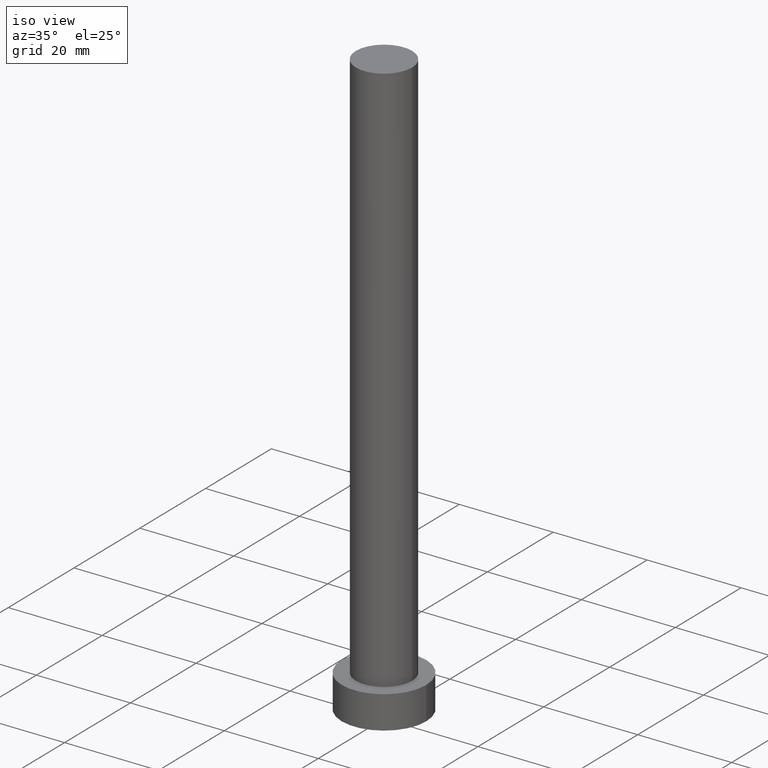
[diagram: clean part render]
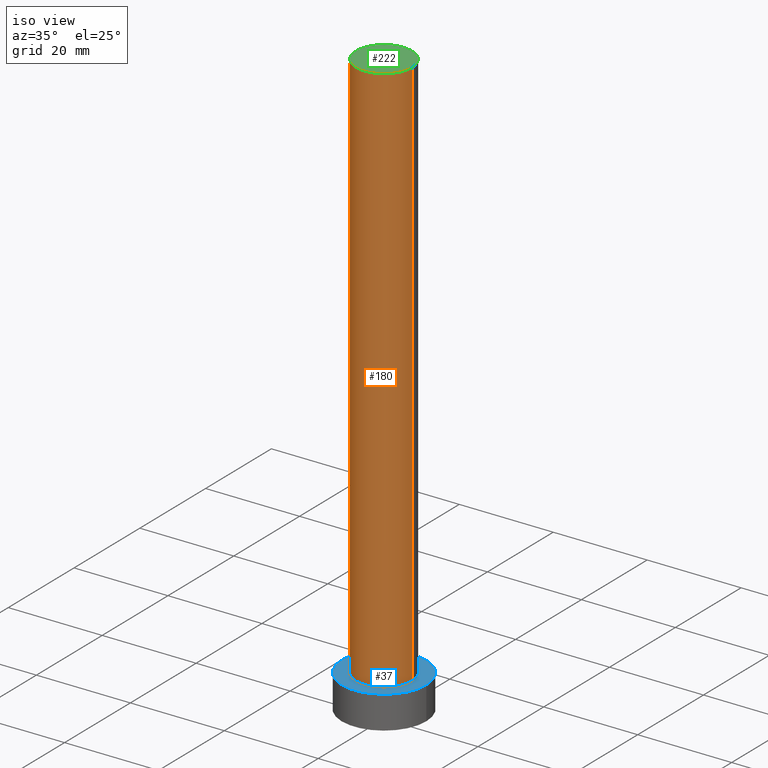
[diagram: same view with three faces highlighted in distinct colors, each labeled with its STEP entity id]
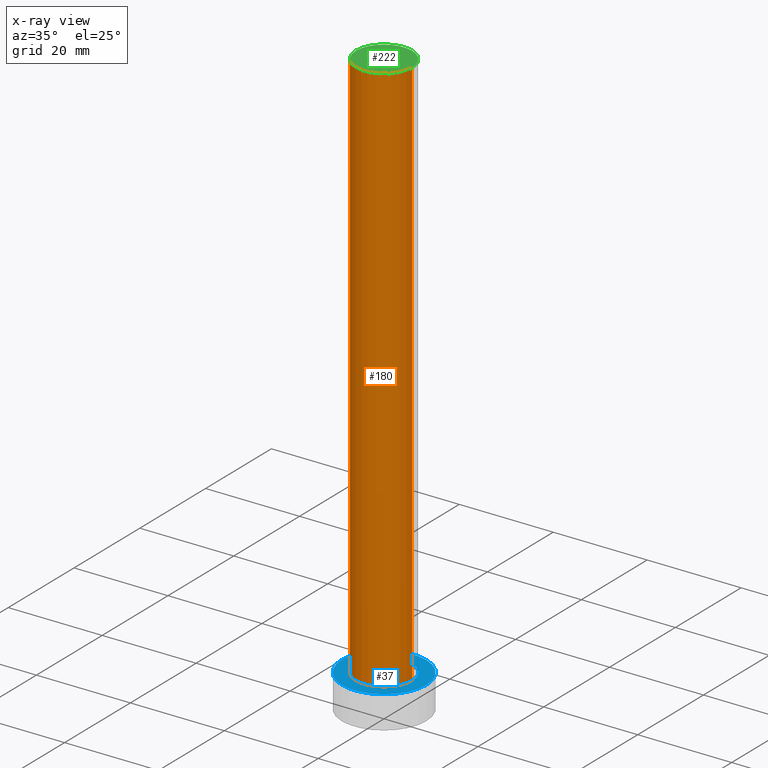
[diagram: x-ray of the same camera — body ghosted, the three highlighted faces saturated]
A machine part, iso view with three faces highlighted in distinct colors.
The next image is the same camera in x-ray (body ghosted, the three faces saturated) — at least one of them is partly hidden behind the body in this view.
Their STEP definitions:

[orange] entity #180 — the highlighted cylindrical surface (edge-blend (fillet) strip) has radius 6 mm, axis along (-0, -0, -1).
#1 = EDGE_CURVE ( 'NONE', #31, #81, #22, .T. ) ;
#7 = VERTEX_POINT ( 'NONE', #188 ) ;
#10 = CYLINDRICAL_SURFACE ( 'NONE', #179, 6.000000000000000888 ) ;
#11 = CARTESIAN_POINT ( 'NONE',  ( 0.000000000000000000, 0.000000000000000000, 125.0000000000000000 ) ) ;
#13 = LINE ( 'NONE', #229, #47 ) ;
#18 = ORIENTED_EDGE ( 'NONE', *, *, #149, .F. ) ;
#21 = CARTESIAN_POINT ( 'NONE',  ( 0.000000000000000000, 0.000000000000000000, 125.0000000000000000 ) ) ;
#22 = LINE ( 'NONE', #241, #146 ) ;
#31 = VERTEX_POINT ( 'NONE', #120 ) ;
#36 = DIRECTION ( 'NONE',  ( 0.000000000000000000, 0.000000000000000000, 1.000000000000000000 ) ) ;
#39 = ORIENTED_EDGE ( 'NONE', *, *, #1, .F. ) ;
#42 = DIRECTION ( 'NONE',  ( -0.000000000000000000, -0.000000000000000000, -1.000000000000000000 ) ) ;
#47 = VECTOR ( 'NONE', #129, 1000.000000000000000 ) ;
#58 = DIRECTION ( 'NONE',  ( 1.000000000000000000, 0.000000000000000000, 0.000000000000000000 ) ) ;
#63 = CIRCLE ( 'NONE', #209, 6.000000000000000888 ) ;
#75 = CARTESIAN_POINT ( 'NONE',  ( -6.000000000000000888, 0.000000000000000000, 7.000000000000000000 ) ) ;
#81 = VERTEX_POINT ( 'NONE', #210 ) ;
#86 = EDGE_CURVE ( 'NONE', #153, #81, #237, .T. ) ;
#100 = EDGE_LOOP ( 'NONE', ( #39, #18, #114, #135 ) ) ;
#114 = ORIENTED_EDGE ( 'NONE', *, *, #172, .T. ) ;
#120 = CARTESIAN_POINT ( 'NONE',  ( 6.000000000000000888, 7.347880794884120722E-16, 125.0000000000000000 ) ) ;
#123 = FACE_OUTER_BOUND ( 'NONE', #100, .T. ) ;
#127 = CARTESIAN_POINT ( 'NONE',  ( 0.000000000000000000, 0.000000000000000000, 7.000000000000000000 ) ) ;
#129 = DIRECTION ( 'NONE',  ( -0.000000000000000000, -0.000000000000000000, -1.000000000000000000 ) ) ;
#133 = DIRECTION ( 'NONE',  ( -1.000000000000000000, 0.000000000000000000, 0.000000000000000000 ) ) ;
#135 = ORIENTED_EDGE ( 'NONE', *, *, #86, .T. ) ;
#146 = VECTOR ( 'NONE', #42, 1000.000000000000000 ) ;
#149 = EDGE_CURVE ( 'NONE', #7, #31, #63, .T. ) ;
#153 = VERTEX_POINT ( 'NONE', #75 ) ;
#154 = AXIS2_PLACEMENT_3D ( 'NONE', #127, #191, #195 ) ;
#172 = EDGE_CURVE ( 'NONE', #7, #153, #13, .T. ) ;
#179 = AXIS2_PLACEMENT_3D ( 'NONE', #21, #202, #133 ) ;
#180 = ADVANCED_FACE ( 'NONE', ( #123 ), #10, .T. ) ;
#188 = CARTESIAN_POINT ( 'NONE',  ( -6.000000000000000888, 0.000000000000000000, 125.0000000000000000 ) ) ;
#191 = DIRECTION ( 'NONE',  ( 0.000000000000000000, 0.000000000000000000, 1.000000000000000000 ) ) ;
#195 = DIRECTION ( 'NONE',  ( 1.000000000000000000, 0.000000000000000000, 0.000000000000000000 ) ) ;
#202 = DIRECTION ( 'NONE',  ( -0.000000000000000000, -0.000000000000000000, -1.000000000000000000 ) ) ;
#209 = AXIS2_PLACEMENT_3D ( 'NONE', #11, #36, #58 ) ;
#210 = CARTESIAN_POINT ( 'NONE',  ( 6.000000000000000888, 7.347880794884120722E-16, 7.000000000000000000 ) ) ;
#229 = CARTESIAN_POINT ( 'NONE',  ( -6.000000000000000888, 0.000000000000000000, 125.0000000000000000 ) ) ;
#237 = CIRCLE ( 'NONE', #154, 6.000000000000000888 ) ;
#241 = CARTESIAN_POINT ( 'NONE',  ( 6.000000000000000888, 7.347880794884120722E-16, 125.0000000000000000 ) ) ;

[blue] entity #37 — the highlighted planar face has unit normal (0, 0, 1).
#9 = CIRCLE ( 'NONE', #166, 9.000000000000000000 ) ;
#15 = FACE_OUTER_BOUND ( 'NONE', #96, .T. ) ;
#16 = DIRECTION ( 'NONE',  ( 0.000000000000000000, 0.000000000000000000, 1.000000000000000000 ) ) ;
#19 = ORIENTED_EDGE ( 'NONE', *, *, #160, .T. ) ;
#20 = EDGE_CURVE ( 'NONE', #178, #77, #9, .T. ) ;
#28 = DIRECTION ( 'NONE',  ( 1.000000000000000000, 0.000000000000000000, 0.000000000000000000 ) ) ;
#30 = DIRECTION ( 'NONE',  ( 1.000000000000000000, 0.000000000000000000, 0.000000000000000000 ) ) ;
#37 = ADVANCED_FACE ( 'NONE', ( #93, #15 ), #168, .T. ) ;
#38 = ORIENTED_EDGE ( 'NONE', *, *, #142, .F. ) ;
#52 = CARTESIAN_POINT ( 'NONE',  ( -9.000000000000000000, 0.000000000000000000, 7.000000000000000000 ) ) ;
#61 = AXIS2_PLACEMENT_3D ( 'NONE', #163, #246, #94 ) ;
#69 = DIRECTION ( 'NONE',  ( 0.000000000000000000, 0.000000000000000000, 1.000000000000000000 ) ) ;
#75 = CARTESIAN_POINT ( 'NONE',  ( -6.000000000000000888, 0.000000000000000000, 7.000000000000000000 ) ) ;
#77 = VERTEX_POINT ( 'NONE', #170 ) ;
#81 = VERTEX_POINT ( 'NONE', #210 ) ;
#86 = EDGE_CURVE ( 'NONE', #153, #81, #237, .T. ) ;
#87 = CARTESIAN_POINT ( 'NONE',  ( 0.000000000000000000, 0.000000000000000000, 7.000000000000000000 ) ) ;
#93 = FACE_BOUND ( 'NONE', #185, .T. ) ;
#94 = DIRECTION ( 'NONE',  ( 1.000000000000000000, 0.000000000000000000, -0.000000000000000000 ) ) ;
#96 = EDGE_LOOP ( 'NONE', ( #102, #19 ) ) ;
#97 = CIRCLE ( 'NONE', #240, 9.000000000000000000 ) ;
#102 = ORIENTED_EDGE ( 'NONE', *, *, #20, .T. ) ;
#117 = DIRECTION ( 'NONE',  ( 0.000000000000000000, 0.000000000000000000, 1.000000000000000000 ) ) ;
#121 = ORIENTED_EDGE ( 'NONE', *, *, #86, .F. ) ;
#127 = CARTESIAN_POINT ( 'NONE',  ( 0.000000000000000000, 0.000000000000000000, 7.000000000000000000 ) ) ;
#139 = DIRECTION ( 'NONE',  ( 1.000000000000000000, 0.000000000000000000, 0.000000000000000000 ) ) ;
#142 = EDGE_CURVE ( 'NONE', #81, #153, #157, .T. ) ;
#148 = CARTESIAN_POINT ( 'NONE',  ( 0.000000000000000000, 0.000000000000000000, 7.000000000000000000 ) ) ;
#153 = VERTEX_POINT ( 'NONE', #75 ) ;
#154 = AXIS2_PLACEMENT_3D ( 'NONE', #127, #191, #195 ) ;
#157 = CIRCLE ( 'NONE', #174, 6.000000000000000888 ) ;
#160 = EDGE_CURVE ( 'NONE', #77, #178, #97, .T. ) ;
#163 = CARTESIAN_POINT ( 'NONE',  ( 0.000000000000000000, 0.000000000000000000, 7.000000000000000000 ) ) ;
#166 = AXIS2_PLACEMENT_3D ( 'NONE', #87, #117, #139 ) ;
#168 = PLANE ( 'NONE',  #61 ) ;
#170 = CARTESIAN_POINT ( 'NONE',  ( 9.000000000000000000, 1.102182119232617714E-15, 7.000000000000000000 ) ) ;
#174 = AXIS2_PLACEMENT_3D ( 'NONE', #214, #16, #30 ) ;
#178 = VERTEX_POINT ( 'NONE', #52 ) ;
#185 = EDGE_LOOP ( 'NONE', ( #121, #38 ) ) ;
#191 = DIRECTION ( 'NONE',  ( 0.000000000000000000, 0.000000000000000000, 1.000000000000000000 ) ) ;
#195 = DIRECTION ( 'NONE',  ( 1.000000000000000000, 0.000000000000000000, 0.000000000000000000 ) ) ;
#210 = CARTESIAN_POINT ( 'NONE',  ( 6.000000000000000888, 7.347880794884120722E-16, 7.000000000000000000 ) ) ;
#214 = CARTESIAN_POINT ( 'NONE',  ( 0.000000000000000000, 0.000000000000000000, 7.000000000000000000 ) ) ;
#237 = CIRCLE ( 'NONE', #154, 6.000000000000000888 ) ;
#240 = AXIS2_PLACEMENT_3D ( 'NONE', #148, #69, #28 ) ;
#246 = DIRECTION ( 'NONE',  ( 0.000000000000000000, 0.000000000000000000, 1.000000000000000000 ) ) ;

[green] entity #222 — the highlighted planar face has unit normal (0, 0, 1).
#3 = PLANE ( 'NONE',  #156 ) ;
#4 = EDGE_LOOP ( 'NONE', ( #79, #113 ) ) ;
#7 = VERTEX_POINT ( 'NONE', #188 ) ;
#11 = CARTESIAN_POINT ( 'NONE',  ( 0.000000000000000000, 0.000000000000000000, 125.0000000000000000 ) ) ;
#31 = VERTEX_POINT ( 'NONE', #120 ) ;
#32 = EDGE_CURVE ( 'NONE', #31, #7, #136, .T. ) ;
#36 = DIRECTION ( 'NONE',  ( 0.000000000000000000, 0.000000000000000000, 1.000000000000000000 ) ) ;
#58 = DIRECTION ( 'NONE',  ( 1.000000000000000000, 0.000000000000000000, 0.000000000000000000 ) ) ;
#63 = CIRCLE ( 'NONE', #209, 6.000000000000000888 ) ;
#67 = CARTESIAN_POINT ( 'NONE',  ( 0.000000000000000000, 0.000000000000000000, 125.0000000000000000 ) ) ;
#79 = ORIENTED_EDGE ( 'NONE', *, *, #149, .T. ) ;
#99 = FACE_OUTER_BOUND ( 'NONE', #4, .T. ) ;
#104 = DIRECTION ( 'NONE',  ( 1.000000000000000000, 0.000000000000000000, -0.000000000000000000 ) ) ;
#113 = ORIENTED_EDGE ( 'NONE', *, *, #32, .T. ) ;
#120 = CARTESIAN_POINT ( 'NONE',  ( 6.000000000000000888, 7.347880794884120722E-16, 125.0000000000000000 ) ) ;
#136 = CIRCLE ( 'NONE', #141, 6.000000000000000888 ) ;
#141 = AXIS2_PLACEMENT_3D ( 'NONE', #67, #227, #164 ) ;
#149 = EDGE_CURVE ( 'NONE', #7, #31, #63, .T. ) ;
#155 = CARTESIAN_POINT ( 'NONE',  ( 0.000000000000000000, 0.000000000000000000, 125.0000000000000000 ) ) ;
#156 = AXIS2_PLACEMENT_3D ( 'NONE', #155, #239, #104 ) ;
#164 = DIRECTION ( 'NONE',  ( 1.000000000000000000, 0.000000000000000000, 0.000000000000000000 ) ) ;
#188 = CARTESIAN_POINT ( 'NONE',  ( -6.000000000000000888, 0.000000000000000000, 125.0000000000000000 ) ) ;
#209 = AXIS2_PLACEMENT_3D ( 'NONE', #11, #36, #58 ) ;
#222 = ADVANCED_FACE ( 'NONE', ( #99 ), #3, .T. ) ;
#227 = DIRECTION ( 'NONE',  ( 0.000000000000000000, 0.000000000000000000, 1.000000000000000000 ) ) ;
#239 = DIRECTION ( 'NONE',  ( 0.000000000000000000, 0.000000000000000000, 1.000000000000000000 ) ) ;